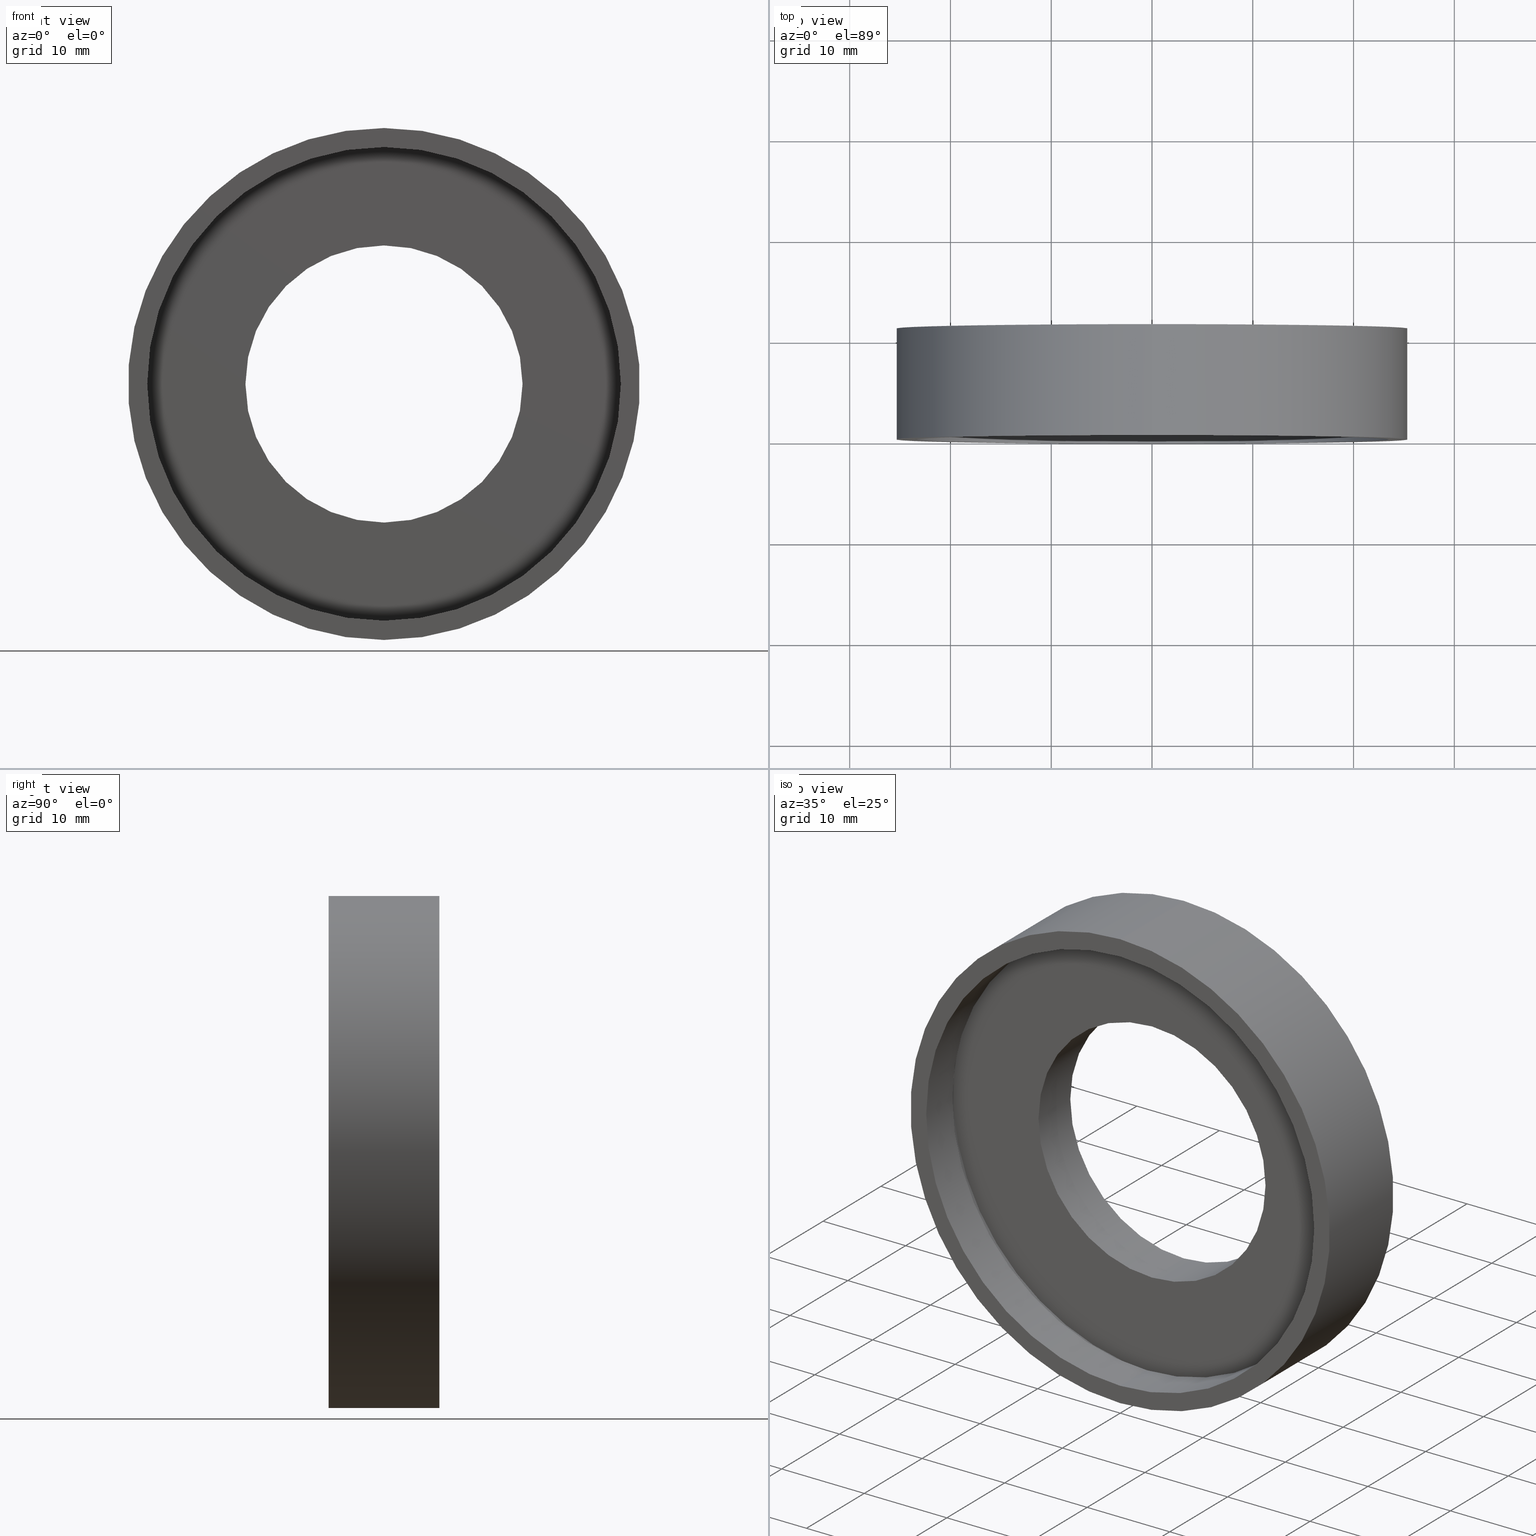
[diagram: canonical four-view strip — front | top / right | iso, engineering-drawing reading convention]
A machine part, canonical four-view strip (front | top / right | iso — engineering-drawing reading convention). The complete STEP part file that produces these views, byte-faithful:
ISO-10303-21;
HEADER;
FILE_DESCRIPTION (( 'STEP AP214' ),
    '1' );
FILE_NAME ('504025.STEP',
    '2019-10-09T02:49:05',
    ( 'user' ),
    ( '΢���й�' ),
    'SwSTEP 2.0',
    'SolidWorks 2016',
    '' );
FILE_SCHEMA (( 'AUTOMOTIVE_DESIGN' ));
ENDSEC;

DATA;
#1 = EDGE_LOOP ( 'NONE', ( #204, #227 ) ) ;
#2 = EDGE_LOOP ( 'NONE', ( #105, #11 ) ) ;
#3 = SURFACE_STYLE_USAGE ( .BOTH. , #129 ) ;
#4 = PRESENTATION_LAYER_ASSIGNMENT (  '', '', ( #48 ) ) ;
#5 = CARTESIAN_POINT ( 'NONE',  ( 3.110602869834277300E-015, 10.99999999999999600, -25.40000000000000200 ) ) ;
#6 = DIRECTION ( 'NONE',  ( 0.0000000000000000000, 0.0000000000000000000, 1.000000000000000000 ) ) ;
#7 = DIRECTION ( 'NONE',  ( -0.0000000000000000000, 1.000000000000000000, -0.0000000000000000000 ) ) ;
#8 = CARTESIAN_POINT ( 'NONE',  ( 0.0000000000000000000, 0.0000000000000000000, 0.0000000000000000000 ) ) ;
#9 = CIRCLE ( 'NONE', #12, 24.10000000000000900 ) ;
#10 = ORIENTED_EDGE ( 'NONE', *, *, #16, .T. ) ;
#11 = ORIENTED_EDGE ( 'NONE', *, *, #127, .F. ) ;
#12 = AXIS2_PLACEMENT_3D ( 'NONE', #301, #178, #302 ) ;
#13 = CARTESIAN_POINT ( 'NONE',  ( 3.110602869834277300E-015, 0.0000000000000000000, -25.40000000000000200 ) ) ;
#14 = DIRECTION ( 'NONE',  ( -0.0000000000000000000, 1.000000000000000000, -0.0000000000000000000 ) ) ;
#15 = ORIENTED_EDGE ( 'NONE', *, *, #309, .T. ) ;
#16 = EDGE_CURVE ( 'NONE', #160, #434, #119, .T. ) ;
#17 = CIRCLE ( 'NONE', #391, 25.40000000000000200 ) ;
#18 = DIRECTION ( 'NONE',  ( 0.0000000000000000000, 0.0000000000000000000, 1.000000000000000000 ) ) ;
#19 = VERTEX_POINT ( 'NONE', #269 ) ;
#20 = CYLINDRICAL_SURFACE ( 'NONE', #406, 24.10000000000000900 ) ;
#21 = CARTESIAN_POINT ( 'NONE',  ( 0.0000000000000000000, 5.499999999999998200, 0.0000000000000000000 ) ) ;
#22 = FILL_AREA_STYLE ('',( #145 ) ) ;
#23 = STYLED_ITEM ( 'NONE', ( #351 ), #275 ) ;
#24 = FACE_OUTER_BOUND ( 'NONE', #2, .T. ) ;
#25 = FACE_OUTER_BOUND ( 'NONE', #219, .T. ) ;
#26 = DIRECTION ( 'NONE',  ( 0.0000000000000000000, 0.0000000000000000000, 1.000000000000000000 ) ) ;
#27 = FACE_OUTER_BOUND ( 'NONE', #316, .T. ) ;
#28 = LINE ( 'NONE', #407, #102 ) ;
#29 = AXIS2_PLACEMENT_3D ( 'NONE', #382, #426, #412 ) ;
#30 = ORIENTED_EDGE ( 'NONE', *, *, #173, .F. ) ;
#31 =( NAMED_UNIT ( * ) SI_UNIT ( $, .STERADIAN. ) SOLID_ANGLE_UNIT ( ) );
#32 = PRODUCT_DEFINITION_CONTEXT ( 'detailed design', #292, 'design' ) ;
#33 = CARTESIAN_POINT ( 'NONE',  ( 0.0000000000000000000, 60.02082041425541100, 23.50000000000000700 ) ) ;
#34 = EDGE_LOOP ( 'NONE', ( #10, #179 ) ) ;
#35 = ORIENTED_EDGE ( 'NONE', *, *, #359, .T. ) ;
#36 = CYLINDRICAL_SURFACE ( 'NONE', #208, 13.75000000000000500 ) ;
#37 = CIRCLE ( 'NONE', #109, 25.40000000000000200 ) ;
#38 = DIRECTION ( 'NONE',  ( -0.0000000000000000000, 1.000000000000000000, -0.0000000000000000000 ) ) ;
#39 = UNCERTAINTY_MEASURE_WITH_UNIT (LENGTH_MEASURE( 1.000000000000000100E-005 ), #271, 'distance_accuracy_value', 'NONE');
#40 = DIRECTION ( 'NONE',  ( 0.0000000000000000000, 0.0000000000000000000, 1.000000000000000000 ) ) ;
#41 = ORIENTED_EDGE ( 'NONE', *, *, #270, .F. ) ;
#42 = LINE ( 'NONE', #33, #345 ) ;
#43 = FACE_BOUND ( 'NONE', #363, .T. ) ;
#44 = DIRECTION ( 'NONE',  ( -0.0000000000000000000, 1.000000000000000000, -0.0000000000000000000 ) ) ;
#45 = DIRECTION ( 'NONE',  ( 0.0000000000000000000, 0.0000000000000000000, 1.000000000000000000 ) ) ;
#46 = ORIENTED_EDGE ( 'NONE', *, *, #185, .F. ) ;
#47 = ADVANCED_BREP_SHAPE_REPRESENTATION ( '504025', ( #275, #250 ), #154 ) ;
#48 = STYLED_ITEM ( 'NONE', ( #419 ), #317 ) ;
#49 = AXIS2_PLACEMENT_3D ( 'NONE', #396, #209, #203 ) ;
#50 = CARTESIAN_POINT ( 'NONE',  ( 0.0000000000000000000, 4.499999999999997300, 24.10000000000000900 ) ) ;
#51 = EDGE_LOOP ( 'NONE', ( #386, #30, #344, #117 ) ) ;
#52 =( NAMED_UNIT ( * ) SI_UNIT ( $, .STERADIAN. ) SOLID_ANGLE_UNIT ( ) );
#53 = FACE_BOUND ( 'NONE', #1, .T. ) ;
#54 = CARTESIAN_POINT ( 'NONE',  ( 0.0000000000000000000, 10.99999999999999600, 25.40000000000000200 ) ) ;
#55 = LINE ( 'NONE', #311, #380 ) ;
#56 =( NAMED_UNIT ( * ) PLANE_ANGLE_UNIT ( ) SI_UNIT ( $, .RADIAN. ) );
#57 = EDGE_CURVE ( 'NONE', #249, #342, #9, .T. ) ;
#58 = EDGE_LOOP ( 'NONE', ( #167, #423, #418, #220 ) ) ;
#59 = VERTEX_POINT ( 'NONE', #383 ) ;
#60 = EDGE_CURVE ( 'NONE', #434, #160, #17, .T. ) ;
#61 = COLOUR_RGB ( '',1.000000000000000000, 1.000000000000000000, 1.000000000000000000 ) ;
#62 = SURFACE_STYLE_FILL_AREA ( #22 ) ;
#63 = DIRECTION ( 'NONE',  ( -0.0000000000000000000, 1.000000000000000000, -0.0000000000000000000 ) ) ;
#64 = AXIS2_PLACEMENT_3D ( 'NONE', #413, #235, #390 ) ;
#65 = DIRECTION ( 'NONE',  ( -0.0000000000000000000, 1.000000000000000000, -0.0000000000000000000 ) ) ;
#66 = ORIENTED_EDGE ( 'NONE', *, *, #60, .F. ) ;
#67 = ADVANCED_FACE ( 'NONE', ( #24, #113 ), #229, .F. ) ;
#68 = VERTEX_POINT ( 'NONE', #93 ) ;
#69 = ADVANCED_FACE ( 'NONE', ( #212 ), #395, .F. ) ;
#70 = PRESENTATION_STYLE_ASSIGNMENT (( #135 ) ) ;
#71 = VECTOR ( 'NONE', #137, 1000.000000000000000 ) ;
#72 = CYLINDRICAL_SURFACE ( 'NONE', #87, 24.10000000000000900 ) ;
#73 = STYLED_ITEM ( 'NONE', ( #70 ), #238 ) ;
#74 = CARTESIAN_POINT ( 'NONE',  ( 2.951398785945122000E-015, 5.499999999999998200, -24.10000000000000900 ) ) ;
#75 = FILL_AREA_STYLE ('',( #425 ) ) ;
#76 = EDGE_LOOP ( 'NONE', ( #162, #393, #142, #35 ) ) ;
#77 = CARTESIAN_POINT ( 'NONE',  ( 0.0000000000000000000, 60.02082041425541100, 25.40000000000000200 ) ) ;
#78 =( NAMED_UNIT ( * ) SI_UNIT ( $, .STERADIAN. ) SOLID_ANGLE_UNIT ( ) );
#79 = COLOUR_RGB ( '',1.000000000000000000, 1.000000000000000000, 1.000000000000000000 ) ;
#80 = SURFACE_STYLE_FILL_AREA ( #121 ) ;
#81 = DIRECTION ( 'NONE',  ( -0.0000000000000000000, 1.000000000000000000, -0.0000000000000000000 ) ) ;
#82 =( NAMED_UNIT ( * ) SI_UNIT ( $, .STERADIAN. ) SOLID_ANGLE_UNIT ( ) );
#83 = EDGE_CURVE ( 'NONE', #342, #249, #358, .T. ) ;
#84 = VERTEX_POINT ( 'NONE', #353 ) ;
#85 = DIRECTION ( 'NONE',  ( 0.0000000000000000000, 0.0000000000000000000, 1.000000000000000000 ) ) ;
#86 = CARTESIAN_POINT ( 'NONE',  ( 0.0000000000000000000, 5.499999999999998200, 0.0000000000000000000 ) ) ;
#87 = AXIS2_PLACEMENT_3D ( 'NONE', #324, #343, #122 ) ;
#88 = DIRECTION ( 'NONE',  ( -0.0000000000000000000, 1.000000000000000000, -0.0000000000000000000 ) ) ;
#89 = CIRCLE ( 'NONE', #371, 23.50000000000000700 ) ;
#90 = AXIS2_PLACEMENT_3D ( 'NONE', #420, #128, #338 ) ;
#91 = EDGE_CURVE ( 'NONE', #323, #19, #89, .T. ) ;
#92 = CARTESIAN_POINT ( 'NONE',  ( 0.0000000000000000000, 60.02082041425541100, 0.0000000000000000000 ) ) ;
#93 = CARTESIAN_POINT ( 'NONE',  ( 2.877919977996281100E-015, 4.499999999999997300, -23.50000000000000700 ) ) ;
#94 = ADVANCED_FACE ( 'NONE', ( #108 ), #20, .F. ) ;
#95 =( LENGTH_UNIT ( ) NAMED_UNIT ( * ) SI_UNIT ( .MILLI., .METRE. ) );
#96 = VERTEX_POINT ( 'NONE', #133 ) ;
#97 = ORIENTED_EDGE ( 'NONE', *, *, #127, .T. ) ;
#98 = PRODUCT_DEFINITION ( 'δ֪', '', #333, #32 ) ;
#99 = AXIS2_PLACEMENT_3D ( 'NONE', #354, #38, #378 ) ;
#100 = FILL_AREA_STYLE_COLOUR ( '', #79 ) ;
#101 = CYLINDRICAL_SURFACE ( 'NONE', #99, 25.40000000000000200 ) ;
#102 = VECTOR ( 'NONE', #397, 1000.000000000000000 ) ;
#103 = DIRECTION ( 'NONE',  ( 0.0000000000000000000, 0.0000000000000000000, 1.000000000000000000 ) ) ;
#104 = DIRECTION ( 'NONE',  ( -0.0000000000000000000, 1.000000000000000000, -0.0000000000000000000 ) ) ;
#105 = ORIENTED_EDGE ( 'NONE', *, *, #359, .F. ) ;
#106 = CLOSED_SHELL ( 'NONE', ( #285, #429, #215, #69, #155, #317, #233, #94, #67, #238, #193, #362 ) ) ;
#107 = LINE ( 'NONE', #394, #405 ) ;
#108 = FACE_OUTER_BOUND ( 'NONE', #76, .T. ) ;
#109 = AXIS2_PLACEMENT_3D ( 'NONE', #374, #157, #156 ) ;
#110 = DIRECTION ( 'NONE',  ( -0.0000000000000000000, 1.000000000000000000, -0.0000000000000000000 ) ) ;
#111 = AXIS2_PLACEMENT_3D ( 'NONE', #360, #414, #364 ) ;
#112 = EDGE_LOOP ( 'NONE', ( #217, #377, #225, #168 ) ) ;
#113 = FACE_BOUND ( 'NONE', #175, .T. ) ;
#114 = CIRCLE ( 'NONE', #159, 25.40000000000000200 ) ;
#115 = CARTESIAN_POINT ( 'NONE',  ( 23.50000000000000700, 4.499999999999999100, 0.0000000000000000000 ) ) ;
#116 = AXIS2_PLACEMENT_3D ( 'NONE', #432, #88, #85 ) ;
#117 = ORIENTED_EDGE ( 'NONE', *, *, #185, .T. ) ;
#118 = DIRECTION ( 'NONE',  ( 0.0000000000000000000, -0.0000000000000000000, -1.000000000000000000 ) ) ;
#119 = CIRCLE ( 'NONE', #384, 25.40000000000000200 ) ;
#120 = COLOUR_RGB ( '',1.000000000000000000, 1.000000000000000000, 1.000000000000000000 ) ;
#121 = FILL_AREA_STYLE ('',( #284 ) ) ;
#122 = DIRECTION ( 'NONE',  ( 0.0000000000000000000, 0.0000000000000000000, 1.000000000000000000 ) ) ;
#123 = DIRECTION ( 'NONE',  ( 0.0000000000000000000, 0.0000000000000000000, 1.000000000000000000 ) ) ;
#124 = UNCERTAINTY_MEASURE_WITH_UNIT (LENGTH_MEASURE( 1.000000000000000100E-005 ), #308, 'distance_accuracy_value', 'NONE');
#125 = MECHANICAL_DESIGN_GEOMETRIC_PRESENTATION_REPRESENTATION (  '', ( #48 ), #247 ) ;
#126 = FILL_AREA_STYLE_COLOUR ( '', #320 ) ;
#127 = EDGE_CURVE ( 'NONE', #367, #283, #298, .T. ) ;
#128 = DIRECTION ( 'NONE',  ( -0.0000000000000000000, 1.000000000000000000, -0.0000000000000000000 ) ) ;
#129 = SURFACE_SIDE_STYLE ('',( #80 ) ) ;
#130 = ORIENTED_EDGE ( 'NONE', *, *, #216, .F. ) ;
#131 = FACE_OUTER_BOUND ( 'NONE', #51, .T. ) ;
#132 = CIRCLE ( 'NONE', #401, 13.75000000000000500 ) ;
#133 = CARTESIAN_POINT ( 'NONE',  ( 0.0000000000000000000, 5.499999999999998200, 13.75000000000000500 ) ) ;
#134 = AXIS2_PLACEMENT_3D ( 'NONE', #115, #365, #226 ) ;
#135 = SURFACE_STYLE_USAGE ( .BOTH. , #169 ) ;
#136 = ORIENTED_EDGE ( 'NONE', *, *, #91, .T. ) ;
#137 = DIRECTION ( 'NONE',  ( -0.0000000000000000000, 1.000000000000000000, -0.0000000000000000000 ) ) ;
#138 = UNCERTAINTY_MEASURE_WITH_UNIT (LENGTH_MEASURE( 1.000000000000000100E-005 ), #385, 'distance_accuracy_value', 'NONE');
#139 = AXIS2_PLACEMENT_3D ( 'NONE', #153, #379, #408 ) ;
#140 = FACE_OUTER_BOUND ( 'NONE', #34, .T. ) ;
#141 = SURFACE_STYLE_FILL_AREA ( #164 ) ;
#142 = ORIENTED_EDGE ( 'NONE', *, *, #307, .T. ) ;
#143 = MECHANICAL_DESIGN_GEOMETRIC_PRESENTATION_REPRESENTATION (  '', ( #213 ), #431 ) ;
#144 = FACE_OUTER_BOUND ( 'NONE', #58, .T. ) ;
#145 = FILL_AREA_STYLE_COLOUR ( '', #61 ) ;
#146 = SURFACE_SIDE_STYLE ('',( #245 ) ) ;
#147 =( NAMED_UNIT ( * ) SI_UNIT ( $, .STERADIAN. ) SOLID_ANGLE_UNIT ( ) );
#148 = AXIS2_PLACEMENT_3D ( 'NONE', #205, #349, #18 ) ;
#149 = VERTEX_POINT ( 'NONE', #13 ) ;
#150 = DIRECTION ( 'NONE',  ( 0.0000000000000000000, 0.0000000000000000000, 1.000000000000000000 ) ) ;
#151 = MECHANICAL_DESIGN_GEOMETRIC_PRESENTATION_REPRESENTATION (  '', ( #399 ), #177 ) ;
#152 =( LENGTH_UNIT ( ) NAMED_UNIT ( * ) SI_UNIT ( .MILLI., .METRE. ) );
#153 = CARTESIAN_POINT ( 'NONE',  ( 0.0000000000000000000, 5.499999999999998200, 0.0000000000000000000 ) ) ;
#154 =( GEOMETRIC_REPRESENTATION_CONTEXT ( 3 ) GLOBAL_UNCERTAINTY_ASSIGNED_CONTEXT ( ( #124 ) ) GLOBAL_UNIT_ASSIGNED_CONTEXT ( ( #308, #313, #147 ) ) REPRESENTATION_CONTEXT ( 'NONE', 'WORKASPACE' ) );
#155 = ADVANCED_FACE ( 'NONE', ( #25, #171 ), #433, .F. ) ;
#156 = DIRECTION ( 'NONE',  ( 0.0000000000000000000, 0.0000000000000000000, 1.000000000000000000 ) ) ;
#157 = DIRECTION ( 'NONE',  ( -0.0000000000000000000, 1.000000000000000000, -0.0000000000000000000 ) ) ;
#158 = UNCERTAINTY_MEASURE_WITH_UNIT (LENGTH_MEASURE( 1.000000000000000100E-005 ), #95, 'distance_accuracy_value', 'NONE');
#159 = AXIS2_PLACEMENT_3D ( 'NONE', #315, #228, #248 ) ;
#160 = VERTEX_POINT ( 'NONE', #54 ) ;
#161 = ORIENTED_EDGE ( 'NONE', *, *, #282, .F. ) ;
#162 = ORIENTED_EDGE ( 'NONE', *, *, #309, .F. ) ;
#163 = ORIENTED_EDGE ( 'NONE', *, *, #83, .F. ) ;
#164 = FILL_AREA_STYLE ('',( #100 ) ) ;
#165 = EDGE_CURVE ( 'NONE', #68, #329, #303, .T. ) ;
#166 = SURFACE_SIDE_STYLE ('',( #243 ) ) ;
#167 = ORIENTED_EDGE ( 'NONE', *, *, #282, .T. ) ;
#168 = ORIENTED_EDGE ( 'NONE', *, *, #192, .F. ) ;
#169 = SURFACE_SIDE_STYLE ('',( #62 ) ) ;
#170 =( GEOMETRIC_REPRESENTATION_CONTEXT ( 3 ) GLOBAL_UNCERTAINTY_ASSIGNED_CONTEXT ( ( #305 ) ) GLOBAL_UNIT_ASSIGNED_CONTEXT ( ( #347, #290, #78 ) ) REPRESENTATION_CONTEXT ( 'NONE', 'WORKASPACE' ) );
#171 = FACE_BOUND ( 'NONE', #341, .T. ) ;
#172 = DIRECTION ( 'NONE',  ( -0.0000000000000000000, 1.000000000000000000, -0.0000000000000000000 ) ) ;
#173 = EDGE_CURVE ( 'NONE', #96, #232, #132, .T. ) ;
#174 =( LENGTH_UNIT ( ) NAMED_UNIT ( * ) SI_UNIT ( .MILLI., .METRE. ) );
#175 = EDGE_LOOP ( 'NONE', ( #325, #236 ) ) ;
#176 = ORIENTED_EDGE ( 'NONE', *, *, #346, .T. ) ;
#177 =( GEOMETRIC_REPRESENTATION_CONTEXT ( 3 ) GLOBAL_UNCERTAINTY_ASSIGNED_CONTEXT ( ( #39 ) ) GLOBAL_UNIT_ASSIGNED_CONTEXT ( ( #271, #263, #273 ) ) REPRESENTATION_CONTEXT ( 'NONE', 'WORKASPACE' ) );
#178 = DIRECTION ( 'NONE',  ( -0.0000000000000000000, 1.000000000000000000, -0.0000000000000000000 ) ) ;
#179 = ORIENTED_EDGE ( 'NONE', *, *, #60, .T. ) ;
#180 = AXIS2_PLACEMENT_3D ( 'NONE', #321, #183, #40 ) ;
#181 = CIRCLE ( 'NONE', #422, 23.50000000000000700 ) ;
#182 = FACE_OUTER_BOUND ( 'NONE', #400, .T. ) ;
#183 = DIRECTION ( 'NONE',  ( -0.0000000000000000000, 1.000000000000000000, -0.0000000000000000000 ) ) ;
#184 = STYLED_ITEM ( 'NONE', ( #214 ), #429 ) ;
#185 = EDGE_CURVE ( 'NONE', #335, #84, #387, .T. ) ;
#186 = PLANE ( 'NONE',  #410 ) ;
#187 = ORIENTED_EDGE ( 'NONE', *, *, #83, .T. ) ;
#188 = ORIENTED_EDGE ( 'NONE', *, *, #57, .T. ) ;
#189 = CIRCLE ( 'NONE', #350, 24.10000000000000900 ) ;
#190 = LINE ( 'NONE', #77, #195 ) ;
#191 = DIRECTION ( 'NONE',  ( -0.0000000000000000000, 1.000000000000000000, -0.0000000000000000000 ) ) ;
#192 = EDGE_CURVE ( 'NONE', #19, #329, #42, .T. ) ;
#193 = ADVANCED_FACE ( 'NONE', ( #43, #140 ), #186, .F. ) ;
#194 = CIRCLE ( 'NONE', #90, 23.50000000000000700 ) ;
#195 = VECTOR ( 'NONE', #44, 1000.000000000000000 ) ;
#196 = LINE ( 'NONE', #240, #201 ) ;
#197 = EDGE_CURVE ( 'NONE', #323, #68, #55, .T. ) ;
#198 = DIRECTION ( 'NONE',  ( 0.0000000000000000000, 0.0000000000000000000, 1.000000000000000000 ) ) ;
#199 = SURFACE_SIDE_STYLE ('',( #141 ) ) ;
#200 = CYLINDRICAL_SURFACE ( 'NONE', #368, 23.50000000000000700 ) ;
#201 = VECTOR ( 'NONE', #280, 1000.000000000000000 ) ;
#202 =( NAMED_UNIT ( * ) PLANE_ANGLE_UNIT ( ) SI_UNIT ( $, .RADIAN. ) );
#203 = DIRECTION ( 'NONE',  ( 0.0000000000000000000, 0.0000000000000000000, 1.000000000000000000 ) ) ;
#204 = ORIENTED_EDGE ( 'NONE', *, *, #427, .F. ) ;
#205 = CARTESIAN_POINT ( 'NONE',  ( 0.0000000000000000000, 60.02082041425541100, 0.0000000000000000000 ) ) ;
#206 = CYLINDRICAL_SURFACE ( 'NONE', #375, 25.40000000000000200 ) ;
#207 = FILL_AREA_STYLE ('',( #126 ) ) ;
#208 = AXIS2_PLACEMENT_3D ( 'NONE', #304, #172, #26 ) ;
#209 = DIRECTION ( 'NONE',  ( -0.0000000000000000000, 1.000000000000000000, -0.0000000000000000000 ) ) ;
#210 = DIRECTION ( 'NONE',  ( -0.0000000000000000000, 1.000000000000000000, -0.0000000000000000000 ) ) ;
#211 = MECHANICAL_DESIGN_GEOMETRIC_PRESENTATION_REPRESENTATION (  '', ( #184 ), #170 ) ;
#212 = FACE_OUTER_BOUND ( 'NONE', #112, .T. ) ;
#213 = STYLED_ITEM ( 'NONE', ( #264 ), #69 ) ;
#214 = PRESENTATION_STYLE_ASSIGNMENT (( #388 ) ) ;
#215 = ADVANCED_FACE ( 'NONE', ( #295 ), #72, .F. ) ;
#216 = EDGE_CURVE ( 'NONE', #149, #434, #289, .T. ) ;
#217 = ORIENTED_EDGE ( 'NONE', *, *, #91, .F. ) ;
#218 = CARTESIAN_POINT ( 'NONE',  ( 2.877919977996281100E-015, 0.0000000000000000000, -23.50000000000000700 ) ) ;
#219 = EDGE_LOOP ( 'NONE', ( #161, #424 ) ) ;
#220 = ORIENTED_EDGE ( 'NONE', *, *, #346, .F. ) ;
#221 = CARTESIAN_POINT ( 'NONE',  ( 2.951398785945122000E-015, 4.499999999999997300, -24.10000000000000900 ) ) ;
#222 = CARTESIAN_POINT ( 'NONE',  ( 0.0000000000000000000, 5.499999999999998200, 0.0000000000000000000 ) ) ;
#223 = DIRECTION ( 'NONE',  ( 0.0000000000000000000, 0.0000000000000000000, 1.000000000000000000 ) ) ;
#224 = ORIENTED_EDGE ( 'NONE', *, *, #270, .T. ) ;
#225 = ORIENTED_EDGE ( 'NONE', *, *, #165, .T. ) ;
#226 = DIRECTION ( 'NONE',  ( 0.0000000000000000000, -0.0000000000000000000, -1.000000000000000000 ) ) ;
#227 = ORIENTED_EDGE ( 'NONE', *, *, #165, .F. ) ;
#228 = DIRECTION ( 'NONE',  ( -0.0000000000000000000, 1.000000000000000000, -0.0000000000000000000 ) ) ;
#229 = PLANE ( 'NONE',  #64 ) ;
#230 = DIRECTION ( 'NONE',  ( 0.0000000000000000000, 0.0000000000000000000, 1.000000000000000000 ) ) ;
#231 = AXIS2_PLACEMENT_3D ( 'NONE', #428, #402, #404 ) ;
#232 = VERTEX_POINT ( 'NONE', #291 ) ;
#233 = ADVANCED_FACE ( 'NONE', ( #53, #27 ), #348, .F. ) ;
#234 = CARTESIAN_POINT ( 'NONE',  ( 0.0000000000000000000, 0.0000000000000000000, 0.0000000000000000000 ) ) ;
#235 = DIRECTION ( 'NONE',  ( -0.0000000000000000000, 1.000000000000000000, 0.0000000000000000000 ) ) ;
#236 = ORIENTED_EDGE ( 'NONE', *, *, #366, .T. ) ;
#237 = ORIENTED_EDGE ( 'NONE', *, *, #262, .T. ) ;
#238 = ADVANCED_FACE ( 'NONE', ( #131 ), #36, .F. ) ;
#239 = EDGE_CURVE ( 'NONE', #149, #59, #37, .T. ) ;
#240 = CARTESIAN_POINT ( 'NONE',  ( 0.0000000000000000000, 60.02082041425541100, 13.75000000000000500 ) ) ;
#241 = SURFACE_STYLE_USAGE ( .BOTH. , #199 ) ;
#242 = ORIENTED_EDGE ( 'NONE', *, *, #239, .T. ) ;
#243 = SURFACE_STYLE_FILL_AREA ( #207 ) ;
#244 = CIRCLE ( 'NONE', #139, 13.75000000000000500 ) ;
#245 = SURFACE_STYLE_FILL_AREA ( #75 ) ;
#246 = COLOUR_RGB ( '',1.000000000000000000, 1.000000000000000000, 1.000000000000000000 ) ;
#247 =( GEOMETRIC_REPRESENTATION_CONTEXT ( 3 ) GLOBAL_UNCERTAINTY_ASSIGNED_CONTEXT ( ( #158 ) ) GLOBAL_UNIT_ASSIGNED_CONTEXT ( ( #95, #421, #82 ) ) REPRESENTATION_CONTEXT ( 'NONE', 'WORKASPACE' ) );
#248 = DIRECTION ( 'NONE',  ( 0.0000000000000000000, 0.0000000000000000000, 1.000000000000000000 ) ) ;
#249 = VERTEX_POINT ( 'NONE', #50 ) ;
#250 = AXIS2_PLACEMENT_3D ( 'NONE', #8, #45, #331 ) ;
#251 = DIRECTION ( 'NONE',  ( -0.0000000000000000000, 1.000000000000000000, -0.0000000000000000000 ) ) ;
#252 = SURFACE_SIDE_STYLE ('',( #373 ) ) ;
#253 = MECHANICAL_DESIGN_GEOMETRIC_PRESENTATION_REPRESENTATION (  '', ( #23 ), #314 ) ;
#254 = ORIENTED_EDGE ( 'NONE', *, *, #409, .F. ) ;
#255 = CYLINDRICAL_SURFACE ( 'NONE', #148, 13.75000000000000500 ) ;
#256 = ORIENTED_EDGE ( 'NONE', *, *, #318, .F. ) ;
#257 = SURFACE_STYLE_USAGE ( .BOTH. , #252 ) ;
#258 = PRESENTATION_LAYER_ASSIGNMENT (  '', '', ( #184 ) ) ;
#259 = FILL_AREA_STYLE_COLOUR ( '', #246 ) ;
#260 = FILL_AREA_STYLE ('',( #259 ) ) ;
#261 = CARTESIAN_POINT ( 'NONE',  ( 0.0000000000000000000, 10.99999999999999600, 13.75000000000000700 ) ) ;
#262 = EDGE_CURVE ( 'NONE', #232, #84, #326, .T. ) ;
#263 =( NAMED_UNIT ( * ) PLANE_ANGLE_UNIT ( ) SI_UNIT ( $, .RADIAN. ) );
#264 = PRESENTATION_STYLE_ASSIGNMENT (( #312 ) ) ;
#265 = CARTESIAN_POINT ( 'NONE',  ( 0.0000000000000000000, 60.02082041425541100, 0.0000000000000000000 ) ) ;
#266 = PRESENTATION_LAYER_ASSIGNMENT (  '', '', ( #213 ) ) ;
#267 = VECTOR ( 'NONE', #104, 1000.000000000000000 ) ;
#268 = CARTESIAN_POINT ( 'NONE',  ( 0.0000000000000000000, 4.499999999999997300, 23.50000000000000700 ) ) ;
#269 = CARTESIAN_POINT ( 'NONE',  ( 0.0000000000000000000, 0.0000000000000000000, 23.50000000000000700 ) ) ;
#270 = EDGE_CURVE ( 'NONE', #84, #335, #356, .T. ) ;
#271 =( LENGTH_UNIT ( ) NAMED_UNIT ( * ) SI_UNIT ( .MILLI., .METRE. ) );
#272 = FACE_OUTER_BOUND ( 'NONE', #415, .T. ) ;
#273 =( NAMED_UNIT ( * ) SI_UNIT ( $, .STERADIAN. ) SOLID_ANGLE_UNIT ( ) );
#274 = DIRECTION ( 'NONE',  ( 0.0000000000000000000, 0.0000000000000000000, 1.000000000000000000 ) ) ;
#275 = MANIFOLD_SOLID_BREP ( '��ת1', #106 ) ;
#276 = ORIENTED_EDGE ( 'NONE', *, *, #307, .F. ) ;
#277 = COLOUR_RGB ( '',1.000000000000000000, 1.000000000000000000, 1.000000000000000000 ) ;
#278 = ORIENTED_EDGE ( 'NONE', *, *, #197, .F. ) ;
#279 = MECHANICAL_DESIGN_GEOMETRIC_PRESENTATION_REPRESENTATION (  '', ( #73 ), #416 ) ;
#280 = DIRECTION ( 'NONE',  ( -0.0000000000000000000, 1.000000000000000000, -0.0000000000000000000 ) ) ;
#281 = DIRECTION ( 'NONE',  ( -0.0000000000000000000, 1.000000000000000000, -0.0000000000000000000 ) ) ;
#282 = EDGE_CURVE ( 'NONE', #59, #149, #114, .T. ) ;
#283 = VERTEX_POINT ( 'NONE', #381 ) ;
#284 = FILL_AREA_STYLE_COLOUR ( '', #120 ) ;
#285 = ADVANCED_FACE ( 'NONE', ( #144 ), #101, .T. ) ;
#286 = CARTESIAN_POINT ( 'NONE',  ( 0.0000000000000000000, 0.0000000000000000000, 0.0000000000000000000 ) ) ;
#287 = PRESENTATION_LAYER_ASSIGNMENT (  '', '', ( #399 ) ) ;
#288 = ORIENTED_EDGE ( 'NONE', *, *, #427, .T. ) ;
#289 = LINE ( 'NONE', #417, #71 ) ;
#290 =( NAMED_UNIT ( * ) PLANE_ANGLE_UNIT ( ) SI_UNIT ( $, .RADIAN. ) );
#291 = CARTESIAN_POINT ( 'NONE',  ( 1.683889348827611400E-015, 5.499999999999998200, -13.75000000000000500 ) ) ;
#292 = APPLICATION_CONTEXT ( 'automotive_design' ) ;
#293 = DIRECTION ( 'NONE',  ( -0.0000000000000000000, 1.000000000000000000, -0.0000000000000000000 ) ) ;
#294 = PRESENTATION_STYLE_ASSIGNMENT (( #257 ) ) ;
#295 = FACE_OUTER_BOUND ( 'NONE', #310, .T. ) ;
#296 = PRODUCT_RELATED_PRODUCT_CATEGORY ( 'part', '', ( #319 ) ) ;
#297 = CARTESIAN_POINT ( 'NONE',  ( 0.0000000000000000000, 60.02082041425541100, 0.0000000000000000000 ) ) ;
#298 = CIRCLE ( 'NONE', #389, 24.10000000000000900 ) ;
#299 = CARTESIAN_POINT ( 'NONE',  ( 1.683889348827611400E-015, 60.02082041425541100, -13.75000000000000500 ) ) ;
#300 = PRESENTATION_LAYER_ASSIGNMENT (  '', '', ( #23 ) ) ;
#301 = CARTESIAN_POINT ( 'NONE',  ( 0.0000000000000000000, 4.499999999999997300, 0.0000000000000000000 ) ) ;
#302 = DIRECTION ( 'NONE',  ( 0.0000000000000000000, 0.0000000000000000000, 1.000000000000000000 ) ) ;
#303 = CIRCLE ( 'NONE', #111, 23.50000000000000700 ) ;
#304 = CARTESIAN_POINT ( 'NONE',  ( 0.0000000000000000000, 60.02082041425541100, 0.0000000000000000000 ) ) ;
#305 = UNCERTAINTY_MEASURE_WITH_UNIT (LENGTH_MEASURE( 1.000000000000000100E-005 ), #347, 'distance_accuracy_value', 'NONE');
#306 =( NAMED_UNIT ( * ) PLANE_ANGLE_UNIT ( ) SI_UNIT ( $, .RADIAN. ) );
#307 = EDGE_CURVE ( 'NONE', #249, #283, #107, .T. ) ;
#308 =( LENGTH_UNIT ( ) NAMED_UNIT ( * ) SI_UNIT ( .MILLI., .METRE. ) );
#309 = EDGE_CURVE ( 'NONE', #342, #367, #28, .T. ) ;
#310 = EDGE_LOOP ( 'NONE', ( #163, #15, #97, #276 ) ) ;
#311 = CARTESIAN_POINT ( 'NONE',  ( 2.877919977996281100E-015, 60.02082041425541100, -23.50000000000000700 ) ) ;
#312 = SURFACE_STYLE_USAGE ( .BOTH. , #166 ) ;
#313 =( NAMED_UNIT ( * ) PLANE_ANGLE_UNIT ( ) SI_UNIT ( $, .RADIAN. ) );
#314 =( GEOMETRIC_REPRESENTATION_CONTEXT ( 3 ) GLOBAL_UNCERTAINTY_ASSIGNED_CONTEXT ( ( #370 ) ) GLOBAL_UNIT_ASSIGNED_CONTEXT ( ( #174, #306, #372 ) ) REPRESENTATION_CONTEXT ( 'NONE', 'WORKASPACE' ) );
#315 = CARTESIAN_POINT ( 'NONE',  ( 0.0000000000000000000, 0.0000000000000000000, 0.0000000000000000000 ) ) ;
#316 = EDGE_LOOP ( 'NONE', ( #188, #187 ) ) ;
#317 = ADVANCED_FACE ( 'NONE', ( #330 ), #200, .F. ) ;
#318 = EDGE_CURVE ( 'NONE', #19, #323, #181, .T. ) ;
#319 = PRODUCT ( '504025', '504025', '', ( #334 ) ) ;
#320 = COLOUR_RGB ( '',1.000000000000000000, 1.000000000000000000, 1.000000000000000000 ) ;
#321 = CARTESIAN_POINT ( 'NONE',  ( 0.0000000000000000000, 10.99999999999999600, 0.0000000000000000000 ) ) ;
#322 = APPLICATION_CONTEXT ( 'automotive_design' ) ;
#323 = VERTEX_POINT ( 'NONE', #218 ) ;
#324 = CARTESIAN_POINT ( 'NONE',  ( 0.0000000000000000000, 60.02082041425541100, 0.0000000000000000000 ) ) ;
#325 = ORIENTED_EDGE ( 'NONE', *, *, #173, .T. ) ;
#326 = LINE ( 'NONE', #299, #267 ) ;
#327 = APPLICATION_PROTOCOL_DEFINITION ( 'draft international standard', 'automotive_design', 1998, #292 ) ;
#328 = ORIENTED_EDGE ( 'NONE', *, *, #366, .F. ) ;
#329 = VERTEX_POINT ( 'NONE', #268 ) ;
#330 = FACE_OUTER_BOUND ( 'NONE', #403, .T. ) ;
#331 = DIRECTION ( 'NONE',  ( 1.000000000000000000, 0.0000000000000000000, 0.0000000000000000000 ) ) ;
#332 = DIRECTION ( 'NONE',  ( 0.0000000000000000000, 0.0000000000000000000, 1.000000000000000000 ) ) ;
#333 = PRODUCT_DEFINITION_FORMATION_WITH_SPECIFIED_SOURCE ( '�κ�', '', #319, .NOT_KNOWN. ) ;
#334 = PRODUCT_CONTEXT ( 'NONE', #322, 'mechanical' ) ;
#335 = VERTEX_POINT ( 'NONE', #261 ) ;
#336 = CARTESIAN_POINT ( 'NONE',  ( 13.75000000000000700, 10.99999999999999800, 0.0000000000000000000 ) ) ;
#337 = DIRECTION ( 'NONE',  ( -0.0000000000000000000, 1.000000000000000000, -0.0000000000000000000 ) ) ;
#338 = DIRECTION ( 'NONE',  ( 0.0000000000000000000, 0.0000000000000000000, 1.000000000000000000 ) ) ;
#339 = UNCERTAINTY_MEASURE_WITH_UNIT (LENGTH_MEASURE( 1.000000000000000100E-005 ), #152, 'distance_accuracy_value', 'NONE');
#340 = PRESENTATION_LAYER_ASSIGNMENT (  '', '', ( #73 ) ) ;
#341 = EDGE_LOOP ( 'NONE', ( #355, #136 ) ) ;
#342 = VERTEX_POINT ( 'NONE', #221 ) ;
#343 = DIRECTION ( 'NONE',  ( -0.0000000000000000000, 1.000000000000000000, -0.0000000000000000000 ) ) ;
#344 = ORIENTED_EDGE ( 'NONE', *, *, #409, .T. ) ;
#345 = VECTOR ( 'NONE', #251, 1000.000000000000000 ) ;
#346 = EDGE_CURVE ( 'NONE', #59, #160, #190, .T. ) ;
#347 =( LENGTH_UNIT ( ) NAMED_UNIT ( * ) SI_UNIT ( .MILLI., .METRE. ) );
#348 = PLANE ( 'NONE',  #134 ) ;
#349 = DIRECTION ( 'NONE',  ( -0.0000000000000000000, 1.000000000000000000, -0.0000000000000000000 ) ) ;
#350 = AXIS2_PLACEMENT_3D ( 'NONE', #222, #65, #150 ) ;
#351 = PRESENTATION_STYLE_ASSIGNMENT (( #241 ) ) ;
#352 = DIRECTION ( 'NONE',  ( 0.0000000000000000000, 0.0000000000000000000, 1.000000000000000000 ) ) ;
#353 = CARTESIAN_POINT ( 'NONE',  ( 1.683889348827611800E-015, 10.99999999999999600, -13.75000000000000900 ) ) ;
#354 = CARTESIAN_POINT ( 'NONE',  ( 0.0000000000000000000, 60.02082041425541100, 0.0000000000000000000 ) ) ;
#355 = ORIENTED_EDGE ( 'NONE', *, *, #318, .T. ) ;
#356 = CIRCLE ( 'NONE', #231, 13.75000000000000700 ) ;
#357 = DIRECTION ( 'NONE',  ( -0.0000000000000000000, 1.000000000000000000, -0.0000000000000000000 ) ) ;
#358 = CIRCLE ( 'NONE', #49, 24.10000000000000900 ) ;
#359 = EDGE_CURVE ( 'NONE', #283, #367, #189, .T. ) ;
#360 = CARTESIAN_POINT ( 'NONE',  ( 0.0000000000000000000, 4.499999999999997300, 0.0000000000000000000 ) ) ;
#361 = DIRECTION ( 'NONE',  ( 0.0000000000000000000, -1.000000000000000000, 0.0000000000000000000 ) ) ;
#362 = ADVANCED_FACE ( 'NONE', ( #182 ), #206, .T. ) ;
#363 = EDGE_LOOP ( 'NONE', ( #46, #41 ) ) ;
#364 = DIRECTION ( 'NONE',  ( 0.0000000000000000000, 0.0000000000000000000, 1.000000000000000000 ) ) ;
#365 = DIRECTION ( 'NONE',  ( 0.0000000000000000000, -1.000000000000000000, 0.0000000000000000000 ) ) ;
#366 = EDGE_CURVE ( 'NONE', #232, #96, #244, .T. ) ;
#367 = VERTEX_POINT ( 'NONE', #74 ) ;
#368 = AXIS2_PLACEMENT_3D ( 'NONE', #265, #281, #223 ) ;
#369 = CARTESIAN_POINT ( 'NONE',  ( 0.0000000000000000000, 10.99999999999999600, 0.0000000000000000000 ) ) ;
#370 = UNCERTAINTY_MEASURE_WITH_UNIT (LENGTH_MEASURE( 1.000000000000000100E-005 ), #174, 'distance_accuracy_value', 'NONE');
#371 = AXIS2_PLACEMENT_3D ( 'NONE', #286, #293, #6 ) ;
#372 =( NAMED_UNIT ( * ) SI_UNIT ( $, .STERADIAN. ) SOLID_ANGLE_UNIT ( ) );
#373 = SURFACE_STYLE_FILL_AREA ( #260 ) ;
#374 = CARTESIAN_POINT ( 'NONE',  ( 0.0000000000000000000, 0.0000000000000000000, 0.0000000000000000000 ) ) ;
#375 = AXIS2_PLACEMENT_3D ( 'NONE', #92, #191, #123 ) ;
#376 = APPLICATION_PROTOCOL_DEFINITION ( 'draft international standard', 'automotive_design', 1998, #322 ) ;
#377 = ORIENTED_EDGE ( 'NONE', *, *, #197, .T. ) ;
#378 = DIRECTION ( 'NONE',  ( 0.0000000000000000000, 0.0000000000000000000, 1.000000000000000000 ) ) ;
#379 = DIRECTION ( 'NONE',  ( -0.0000000000000000000, 1.000000000000000000, -0.0000000000000000000 ) ) ;
#380 = VECTOR ( 'NONE', #110, 1000.000000000000000 ) ;
#381 = CARTESIAN_POINT ( 'NONE',  ( 0.0000000000000000000, 5.499999999999998200, 24.10000000000000900 ) ) ;
#382 = CARTESIAN_POINT ( 'NONE',  ( 25.40000000000000200, -2.755455298081544800E-016, 0.0000000000000000000 ) ) ;
#383 = CARTESIAN_POINT ( 'NONE',  ( 0.0000000000000000000, 0.0000000000000000000, 25.40000000000000200 ) ) ;
#384 = AXIS2_PLACEMENT_3D ( 'NONE', #369, #210, #103 ) ;
#385 =( LENGTH_UNIT ( ) NAMED_UNIT ( * ) SI_UNIT ( .MILLI., .METRE. ) );
#386 = ORIENTED_EDGE ( 'NONE', *, *, #262, .F. ) ;
#387 = CIRCLE ( 'NONE', #180, 13.75000000000000700 ) ;
#388 = SURFACE_STYLE_USAGE ( .BOTH. , #146 ) ;
#389 = AXIS2_PLACEMENT_3D ( 'NONE', #21, #7, #274 ) ;
#390 = DIRECTION ( 'NONE',  ( 0.0000000000000000000, 0.0000000000000000000, 1.000000000000000000 ) ) ;
#391 = AXIS2_PLACEMENT_3D ( 'NONE', #392, #14, #198 ) ;
#392 = CARTESIAN_POINT ( 'NONE',  ( 0.0000000000000000000, 10.99999999999999600, 0.0000000000000000000 ) ) ;
#393 = ORIENTED_EDGE ( 'NONE', *, *, #57, .F. ) ;
#394 = CARTESIAN_POINT ( 'NONE',  ( 0.0000000000000000000, 60.02082041425541100, 24.10000000000000900 ) ) ;
#395 = CYLINDRICAL_SURFACE ( 'NONE', #116, 23.50000000000000700 ) ;
#396 = CARTESIAN_POINT ( 'NONE',  ( 0.0000000000000000000, 4.499999999999997300, 0.0000000000000000000 ) ) ;
#397 = DIRECTION ( 'NONE',  ( -0.0000000000000000000, 1.000000000000000000, -0.0000000000000000000 ) ) ;
#398 = ORIENTED_EDGE ( 'NONE', *, *, #192, .T. ) ;
#399 = STYLED_ITEM ( 'NONE', ( #294 ), #47 ) ;
#400 = EDGE_LOOP ( 'NONE', ( #130, #242, #176, #66 ) ) ;
#401 = AXIS2_PLACEMENT_3D ( 'NONE', #86, #81, #352 ) ;
#402 = DIRECTION ( 'NONE',  ( -0.0000000000000000000, 1.000000000000000000, -0.0000000000000000000 ) ) ;
#403 = EDGE_LOOP ( 'NONE', ( #278, #256, #398, #288 ) ) ;
#404 = DIRECTION ( 'NONE',  ( 0.0000000000000000000, 0.0000000000000000000, 1.000000000000000000 ) ) ;
#405 = VECTOR ( 'NONE', #63, 1000.000000000000000 ) ;
#406 = AXIS2_PLACEMENT_3D ( 'NONE', #297, #357, #230 ) ;
#407 = CARTESIAN_POINT ( 'NONE',  ( 2.951398785945122000E-015, 60.02082041425541100, -24.10000000000000900 ) ) ;
#408 = DIRECTION ( 'NONE',  ( 0.0000000000000000000, 0.0000000000000000000, 1.000000000000000000 ) ) ;
#409 = EDGE_CURVE ( 'NONE', #96, #335, #196, .T. ) ;
#410 = AXIS2_PLACEMENT_3D ( 'NONE', #336, #361, #118 ) ;
#411 = PRODUCT_DEFINITION_SHAPE ( 'NONE', 'NONE',  #98 ) ;
#412 = DIRECTION ( 'NONE',  ( 0.0000000000000000000, 0.0000000000000000000, 1.000000000000000000 ) ) ;
#413 = CARTESIAN_POINT ( 'NONE',  ( 24.10000000000000900, 5.499999999999998200, 0.0000000000000000000 ) ) ;
#414 = DIRECTION ( 'NONE',  ( -0.0000000000000000000, 1.000000000000000000, -0.0000000000000000000 ) ) ;
#415 = EDGE_LOOP ( 'NONE', ( #328, #237, #224, #254 ) ) ;
#416 =( GEOMETRIC_REPRESENTATION_CONTEXT ( 3 ) GLOBAL_UNCERTAINTY_ASSIGNED_CONTEXT ( ( #339 ) ) GLOBAL_UNIT_ASSIGNED_CONTEXT ( ( #152, #56, #31 ) ) REPRESENTATION_CONTEXT ( 'NONE', 'WORKASPACE' ) );
#417 = CARTESIAN_POINT ( 'NONE',  ( 3.110602869834277300E-015, 60.02082041425541100, -25.40000000000000200 ) ) ;
#418 = ORIENTED_EDGE ( 'NONE', *, *, #16, .F. ) ;
#419 = PRESENTATION_STYLE_ASSIGNMENT (( #3 ) ) ;
#420 = CARTESIAN_POINT ( 'NONE',  ( 0.0000000000000000000, 4.499999999999997300, 0.0000000000000000000 ) ) ;
#421 =( NAMED_UNIT ( * ) PLANE_ANGLE_UNIT ( ) SI_UNIT ( $, .RADIAN. ) );
#422 = AXIS2_PLACEMENT_3D ( 'NONE', #234, #337, #332 ) ;
#423 = ORIENTED_EDGE ( 'NONE', *, *, #216, .T. ) ;
#424 = ORIENTED_EDGE ( 'NONE', *, *, #239, .F. ) ;
#425 = FILL_AREA_STYLE_COLOUR ( '', #277 ) ;
#426 = DIRECTION ( 'NONE',  ( -0.0000000000000000000, 1.000000000000000000, 0.0000000000000000000 ) ) ;
#427 = EDGE_CURVE ( 'NONE', #329, #68, #194, .T. ) ;
#428 = CARTESIAN_POINT ( 'NONE',  ( 0.0000000000000000000, 10.99999999999999600, 0.0000000000000000000 ) ) ;
#429 = ADVANCED_FACE ( 'NONE', ( #272 ), #255, .F. ) ;
#430 = SHAPE_DEFINITION_REPRESENTATION ( #411, #47 ) ;
#431 =( GEOMETRIC_REPRESENTATION_CONTEXT ( 3 ) GLOBAL_UNCERTAINTY_ASSIGNED_CONTEXT ( ( #138 ) ) GLOBAL_UNIT_ASSIGNED_CONTEXT ( ( #385, #202, #52 ) ) REPRESENTATION_CONTEXT ( 'NONE', 'WORKASPACE' ) );
#432 = CARTESIAN_POINT ( 'NONE',  ( 0.0000000000000000000, 60.02082041425541100, 0.0000000000000000000 ) ) ;
#433 = PLANE ( 'NONE',  #29 ) ;
#434 = VERTEX_POINT ( 'NONE', #5 ) ;
ENDSEC;
END-ISO-10303-21;
